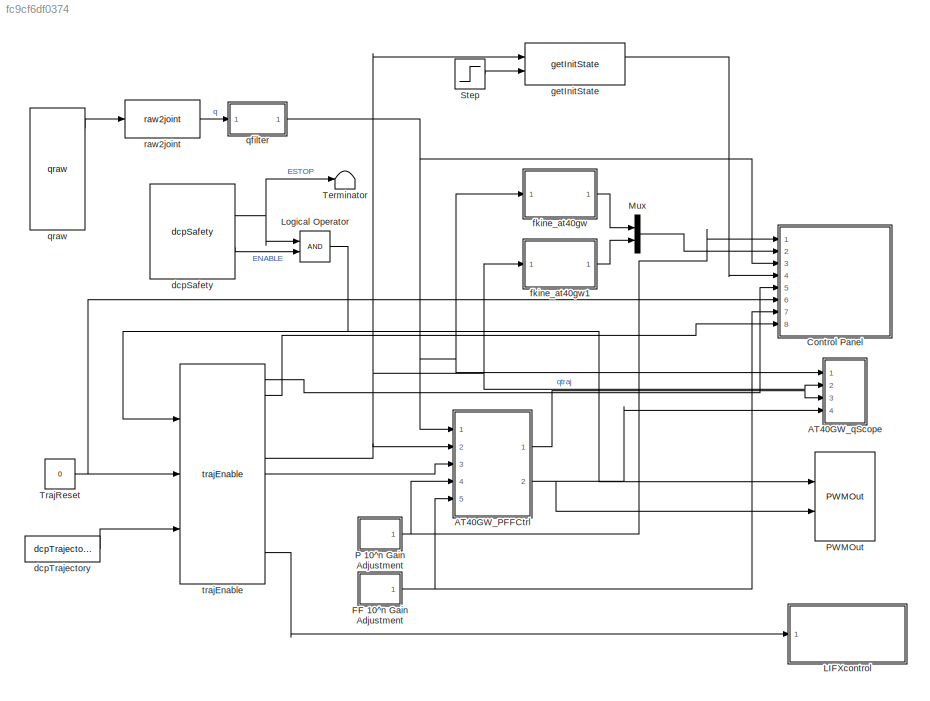
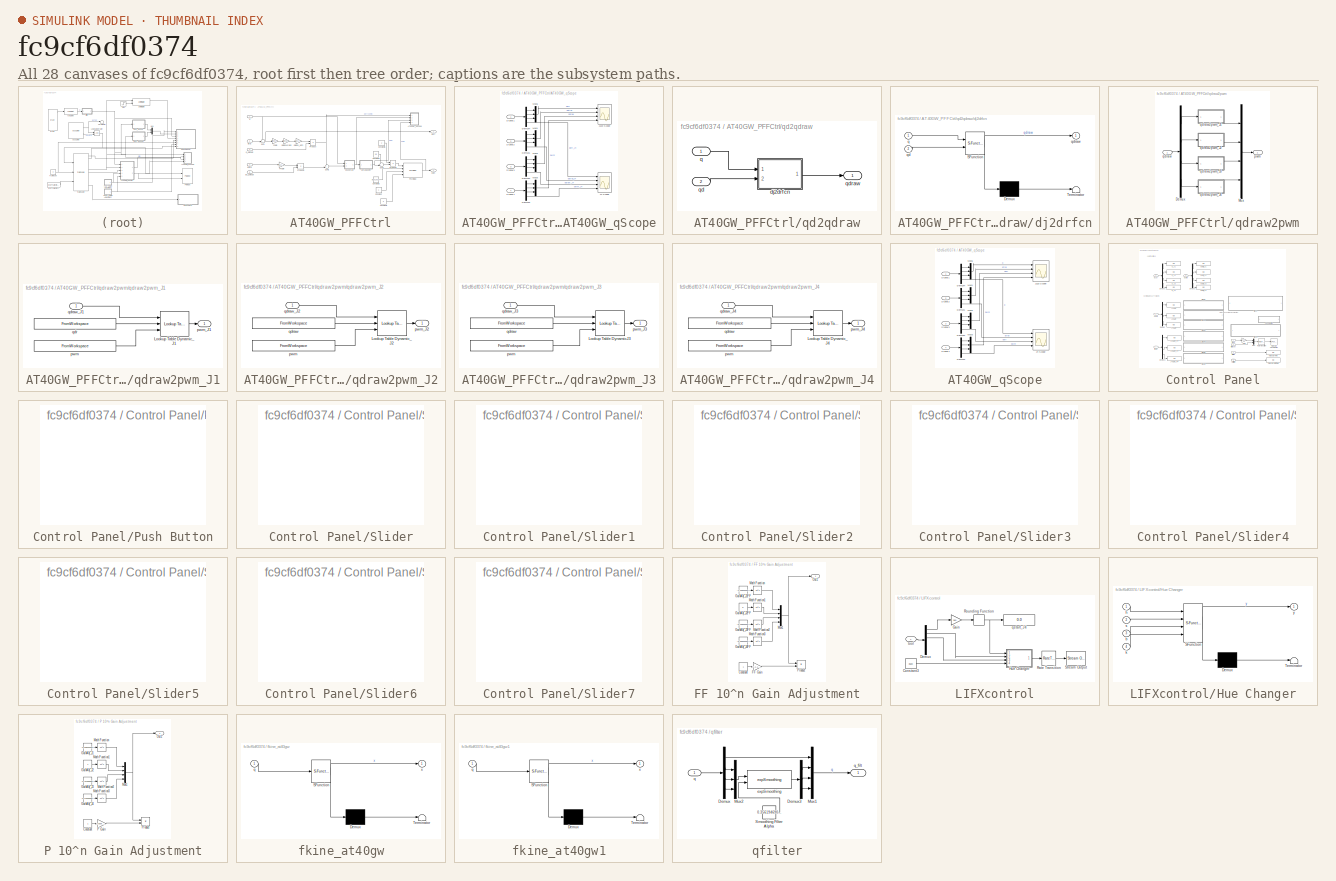
[diagram: thumbnail index - all 28 canvases of the model, root first then tree order]
MODEL slx_fc9cf6df0374
KIND model
CONFIG AbsTol = auto
CONFIG EnableMultiTasking = on
CONFIG FixedStep = 0.001
CONFIG MaxStep = auto
CONFIG MinStep = auto
CONFIG RelTol = 1e-3
CONFIG SampleTimeConstraint = Unconstrained
CONFIG Solver = ode5
CONFIG SolverName = ode5
CONFIG StartTime = 0.0
CONFIG StopTime = inf
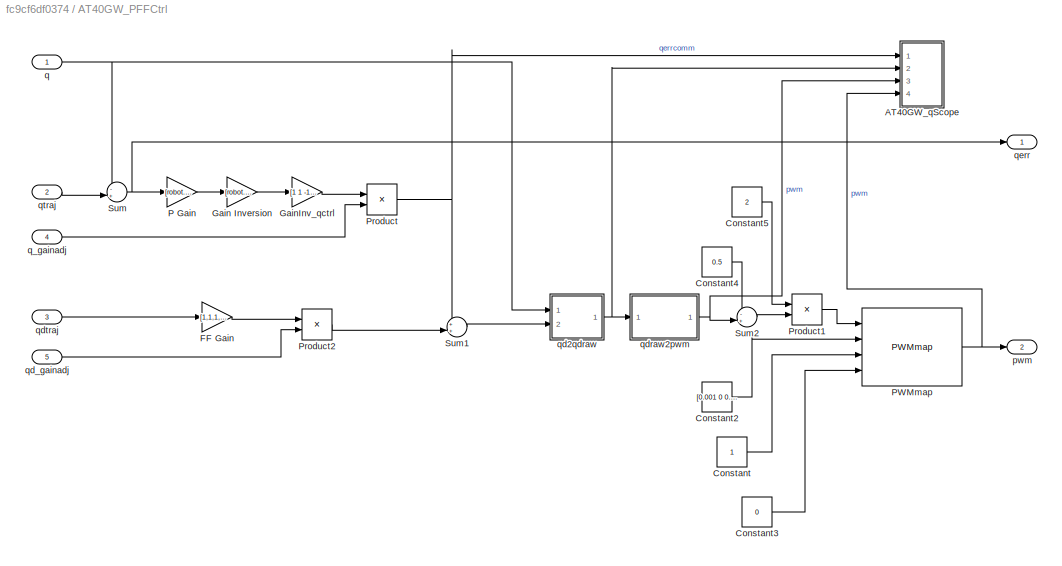
BLOCK [SubSystem] AT40GW_PFFCtrl
  Ports = [5, 2]
  RequestExecContextInheritance = off
  Variant = off
BLOCK [SubSystem] AT40GW_PFFCtrl/AT40GW_qScope
  Ports = [4]
  RequestExecContextInheritance = off
  Variant = off
BLOCK [Demux] AT40GW_PFFCtrl/AT40GW_qScope/Demux1
  DisplayOption = bar
  Ports = [1, 4]
BLOCK [Demux] AT40GW_PFFCtrl/AT40GW_qScope/Demux2
  DisplayOption = bar
  Ports = [1, 4]
BLOCK [Demux] AT40GW_PFFCtrl/AT40GW_qScope/Demux3
  DisplayOption = bar
  Ports = [1, 4]
BLOCK [Demux] AT40GW_PFFCtrl/AT40GW_qScope/Demux4
  DisplayOption = bar
  Ports = [1, 4]
BLOCK [Scope] AT40GW_PFFCtrl/AT40GW_qScope/J123 Scope
  NumInputPorts = 4
  Ports = [4]
  ScopeSpecificationString = C++SS(StrPVP('SaveName','ScopeData1'))
BLOCK [Scope] AT40GW_PFFCtrl/AT40GW_qScope/J4 Scope
  NumInputPorts = 4
  Ports = [4]
  ScopeSpecificationString = C++SS(StrPVP('SaveName','ScopeData1'),StrPVP('SaveName','ScopeData2'))
BLOCK [Mux] AT40GW_PFFCtrl/AT40GW_qScope/Mux1
  DisplayOption = bar
  Inputs = 3
  Ports = [3, 1]
BLOCK [Mux] AT40GW_PFFCtrl/AT40GW_qScope/Mux2
  DisplayOption = bar
  Inputs = 3
  Ports = [3, 1]
BLOCK [Mux] AT40GW_PFFCtrl/AT40GW_qScope/Mux3
  DisplayOption = bar
  Inputs = 3
  Ports = [3, 1]
BLOCK [Mux] AT40GW_PFFCtrl/AT40GW_qScope/Mux6
  DisplayOption = bar
  Inputs = 3
  Ports = [3, 1]
BLOCK [Inport] AT40GW_PFFCtrl/AT40GW_qScope/Signal1
  IconDisplay = Port number
BLOCK [Inport] AT40GW_PFFCtrl/AT40GW_qScope/Signal2
  IconDisplay = Port number
  Port = 2
BLOCK [Inport] AT40GW_PFFCtrl/AT40GW_qScope/Signal3
  IconDisplay = Port number
  Port = 3
BLOCK [Inport] AT40GW_PFFCtrl/AT40GW_qScope/Signal4
  IconDisplay = Port number
  Port = 4
BLOCK [Constant] AT40GW_PFFCtrl/Constant
BLOCK [Constant] AT40GW_PFFCtrl/Constant2
  Value = [0.001 0 0.001 0.001]
BLOCK [Constant] AT40GW_PFFCtrl/Constant3
  Value = 0
BLOCK [Constant] AT40GW_PFFCtrl/Constant4
  Value = 0.5
BLOCK [Constant] AT40GW_PFFCtrl/Constant5
  Value = 2
BLOCK [Gain] AT40GW_PFFCtrl/FF Gain
  Gain = [1,1,1,1]
  OutDataTypeStr = Inherit: Inherit via internal rule
  ParamDataTypeStr = Inherit: Inherit via internal rule
  SaturateOnIntegerOverflow = off
BLOCK [Gain] AT40GW_PFFCtrl/Gain Inversion
  Gain = [robot.Joint(:).GainInv]
  OutDataTypeStr = Inherit: Inherit via internal rule
  ParamDataTypeStr = Inherit: Inherit via internal rule
  SaturateOnIntegerOverflow = off
BLOCK [Gain] AT40GW_PFFCtrl/GainInv_qctrl
  Gain = [1 1 -1 -1]
  OutDataTypeStr = Inherit: Inherit via internal rule
  ParamDataTypeStr = Inherit: Inherit via internal rule
  SaturateOnIntegerOverflow = off
BLOCK [Gain] AT40GW_PFFCtrl/P Gain
  Gain = [robot.Joint(:).Kp]
  OutDataTypeStr = Inherit: Inherit via internal rule
  ParamDataTypeStr = Inherit: Inherit via internal rule
  SaturateOnIntegerOverflow = off
BLOCK [Reference] AT40GW_PFFCtrl/PWMmap  REF=dcpctrl/PWMmap
  Ports = [4, 1]
  SourceBlock = dcpctrl/PWMmap
  SourceType = PWMmap
BLOCK [Product] AT40GW_PFFCtrl/Product
  InputSameDT = off
  OutDataTypeStr = Inherit: Inherit via internal rule
  Ports = [2, 1]
  RndMeth = Floor
  SaturateOnIntegerOverflow = off
BLOCK [Product] AT40GW_PFFCtrl/Product1
  InputSameDT = off
  OutDataTypeStr = Inherit: Inherit via internal rule
  Ports = [2, 1]
  RndMeth = Floor
  SaturateOnIntegerOverflow = off
BLOCK [Product] AT40GW_PFFCtrl/Product2
  InputSameDT = off
  OutDataTypeStr = Inherit: Inherit via internal rule
  Ports = [2, 1]
  RndMeth = Floor
  SaturateOnIntegerOverflow = off
BLOCK [Sum] AT40GW_PFFCtrl/Sum
  IconShape = round
  InputSameDT = off
  Inputs = -+|
  OutDataTypeStr = Inherit: Inherit via internal rule
  Ports = [2, 1]
  SaturateOnIntegerOverflow = off
BLOCK [Sum] AT40GW_PFFCtrl/Sum1
  IconShape = round
  InputSameDT = off
  Inputs = ++|
  OutDataTypeStr = Inherit: Inherit via internal rule
  Ports = [2, 1]
  SaturateOnIntegerOverflow = off
BLOCK [Sum] AT40GW_PFFCtrl/Sum2
  IconShape = round
  InputSameDT = off
  Inputs = -+|
  OutDataTypeStr = Inherit: Inherit via internal rule
  Ports = [2, 1]
  SaturateOnIntegerOverflow = off
BLOCK [Outport] AT40GW_PFFCtrl/pwm
  IconDisplay = Port number
  Port = 2
BLOCK [Inport] AT40GW_PFFCtrl/q
  IconDisplay = Port number
BLOCK [Inport] AT40GW_PFFCtrl/q_gainadj 
  IconDisplay = Port number
  Port = 4
BLOCK [SubSystem] AT40GW_PFFCtrl/qd2qdraw
  Ports = [2, 1]
  RequestExecContextInheritance = off
  Variant = off
BLOCK [SubSystem] AT40GW_PFFCtrl/qd2qdraw/dj2drfcn
  ErrorFcn = Stateflow.Translate.translate
  PermitHierarchicalResolution = ExplicitOnly
  Ports = [2, 1]
  RequestExecContextInheritance = off
  SFBlockType = MATLAB Function
  TreatAsAtomicUnit = on
  Variant = off
BLOCK [Demux] AT40GW_PFFCtrl/qd2qdraw/dj2drfcn/ Demux 
  Outputs = 1
  Ports = [1, 1]
BLOCK [S-Function] AT40GW_PFFCtrl/qd2qdraw/dj2drfcn/ SFunction 
  EnableBusSupport = off
  FunctionName = sf_sfun
  PortCounts = [2 2]
  Ports = [2, 2]
  SFcnIsStateOwnerBlock = off
  SFunctionDeploymentMode = off
  Tag = Stateflow S-Function at40_pffCtrl_q 3
BLOCK [Terminator] AT40GW_PFFCtrl/qd2qdraw/dj2drfcn/ Terminator 
BLOCK [Inport] AT40GW_PFFCtrl/qd2qdraw/dj2drfcn/q
  IconDisplay = Port number
BLOCK [Inport] AT40GW_PFFCtrl/qd2qdraw/dj2drfcn/qd
  IconDisplay = Port number
  Port = 2
BLOCK [Outport] AT40GW_PFFCtrl/qd2qdraw/dj2drfcn/qdraw
  IconDisplay = Port number
BLOCK [Inport] AT40GW_PFFCtrl/qd2qdraw/q
  IconDisplay = Port number
BLOCK [Inport] AT40GW_PFFCtrl/qd2qdraw/qd
  IconDisplay = Port number
  Port = 2
BLOCK [Outport] AT40GW_PFFCtrl/qd2qdraw/qdraw
  IconDisplay = Port number
BLOCK [Inport] AT40GW_PFFCtrl/qd_gainadj
  IconDisplay = Port number
  Port = 5
BLOCK [SubSystem] AT40GW_PFFCtrl/qdraw2pwm
  Ports = [1, 1]
  RequestExecContextInheritance = off
  Variant = off
BLOCK [Demux] AT40GW_PFFCtrl/qdraw2pwm/Demux
  DisplayOption = bar
  Ports = [1, 4]
BLOCK [Mux] AT40GW_PFFCtrl/qdraw2pwm/Mux
  DisplayOption = bar
  Ports = [4, 1]
BLOCK [Outport] AT40GW_PFFCtrl/qdraw2pwm/pwm
  IconDisplay = Port number
BLOCK [Inport] AT40GW_PFFCtrl/qdraw2pwm/qdraw
  IconDisplay = Port number
BLOCK [SubSystem] AT40GW_PFFCtrl/qdraw2pwm/qdraw2pwm_J1
  Ports = [1, 1]
  RequestExecContextInheritance = off
  Variant = off
BLOCK [Reference] AT40GW_PFFCtrl/qdraw2pwm/qdraw2pwm_J1/Lookup Table Dynamic_J1  REF=simulink/Lookup
Tables/Lookup
Table
Dynamic
  Ports = [3, 1]
  SourceBlock = simulink/Lookup\nTables/Lookup\nTable\nDynamic
  SourceType = Lookup Table Dynamic
BLOCK [FromWorkspace] AT40GW_PFFCtrl/qdraw2pwm/qdraw2pwm_J1/pwm
  SampleTime = 0
  VariableName = robot.J1qdr2PWMmap(:,1)'
  ZeroCross = on
BLOCK [Outport] AT40GW_PFFCtrl/qdraw2pwm/qdraw2pwm_J1/pwm_J1
  IconDisplay = Port number
BLOCK [FromWorkspace] AT40GW_PFFCtrl/qdraw2pwm/qdraw2pwm_J1/qdr
  SampleTime = 0
  VariableName = robot.J1qdr2PWMmap(:,2)'
  ZeroCross = on
BLOCK [Inport] AT40GW_PFFCtrl/qdraw2pwm/qdraw2pwm_J1/qdraw_J1
  IconDisplay = Port number
BLOCK [SubSystem] AT40GW_PFFCtrl/qdraw2pwm/qdraw2pwm_J2
  Ports = [1, 1]
  RequestExecContextInheritance = off
  Variant = off
BLOCK [Reference] AT40GW_PFFCtrl/qdraw2pwm/qdraw2pwm_J2/Lookup Table Dynamic_J2  REF=simulink/Lookup
Tables/Lookup
Table
Dynamic
  Ports = [3, 1]
  SourceBlock = simulink/Lookup\nTables/Lookup\nTable\nDynamic
  SourceType = Lookup Table Dynamic
BLOCK [FromWorkspace] AT40GW_PFFCtrl/qdraw2pwm/qdraw2pwm_J2/pwm
  SampleTime = 0
  VariableName = robot.J2qdr2PWMmap(:,1)'
  ZeroCross = on
BLOCK [Outport] AT40GW_PFFCtrl/qdraw2pwm/qdraw2pwm_J2/pwm_J2
  IconDisplay = Port number
BLOCK [FromWorkspace] AT40GW_PFFCtrl/qdraw2pwm/qdraw2pwm_J2/qdraw
  SampleTime = 0
  VariableName = robot.J2qdr2PWMmap(:,2)'
  ZeroCross = on
BLOCK [Inport] AT40GW_PFFCtrl/qdraw2pwm/qdraw2pwm_J2/qdraw_J2
  IconDisplay = Port number
BLOCK [SubSystem] AT40GW_PFFCtrl/qdraw2pwm/qdraw2pwm_J3
  Ports = [1, 1]
  RequestExecContextInheritance = off
  Variant = off
BLOCK [Reference] AT40GW_PFFCtrl/qdraw2pwm/qdraw2pwm_J3/Lookup Table DynamicJ3  REF=simulink/Lookup
Tables/Lookup
Table
Dynamic
  Ports = [3, 1]
  SourceBlock = simulink/Lookup\nTables/Lookup\nTable\nDynamic
  SourceType = Lookup Table Dynamic
BLOCK [FromWorkspace] AT40GW_PFFCtrl/qdraw2pwm/qdraw2pwm_J3/pwm
  SampleTime = 0
  VariableName = robot.J3qdr2PWMmap(:,1)'
  ZeroCross = on
BLOCK [Outport] AT40GW_PFFCtrl/qdraw2pwm/qdraw2pwm_J3/pwm_J3
  IconDisplay = Port number
BLOCK [FromWorkspace] AT40GW_PFFCtrl/qdraw2pwm/qdraw2pwm_J3/qdraw
  SampleTime = 0
  VariableName = robot.J3qdr2PWMmap(:,2)'
  ZeroCross = on
BLOCK [Inport] AT40GW_PFFCtrl/qdraw2pwm/qdraw2pwm_J3/qdraw_J3
  IconDisplay = Port number
BLOCK [SubSystem] AT40GW_PFFCtrl/qdraw2pwm/qdraw2pwm_J4
  Ports = [1, 1]
  RequestExecContextInheritance = off
  Variant = off
BLOCK [Reference] AT40GW_PFFCtrl/qdraw2pwm/qdraw2pwm_J4/Lookup Table Dynamic_J4  REF=simulink/Lookup
Tables/Lookup
Table
Dynamic
  Ports = [3, 1]
  SourceBlock = simulink/Lookup\nTables/Lookup\nTable\nDynamic
  SourceType = Lookup Table Dynamic
BLOCK [FromWorkspace] AT40GW_PFFCtrl/qdraw2pwm/qdraw2pwm_J4/pwm
  SampleTime = 0
  VariableName = robot.J4qdr2PWMmap(:,1)'
  ZeroCross = on
BLOCK [Outport] AT40GW_PFFCtrl/qdraw2pwm/qdraw2pwm_J4/pwm_J4
  IconDisplay = Port number
BLOCK [FromWorkspace] AT40GW_PFFCtrl/qdraw2pwm/qdraw2pwm_J4/qdraw
  SampleTime = 0
  VariableName = robot.J4qdr2PWMmap(:,2)'
  ZeroCross = on
BLOCK [Inport] AT40GW_PFFCtrl/qdraw2pwm/qdraw2pwm_J4/qdraw_J4
  IconDisplay = Port number
BLOCK [Inport] AT40GW_PFFCtrl/qdtraj
  IconDisplay = Port number
  Port = 3
BLOCK [Outport] AT40GW_PFFCtrl/qerr
  IconDisplay = Port number
BLOCK [Inport] AT40GW_PFFCtrl/qtraj
  IconDisplay = Port number
  Port = 2
BLOCK [SubSystem] AT40GW_qScope
  Ports = [4]
  RequestExecContextInheritance = off
  Variant = off
BLOCK [Demux] AT40GW_qScope/Demux1
  DisplayOption = bar
  Ports = [1, 4]
BLOCK [Demux] AT40GW_qScope/Demux2
  DisplayOption = bar
  Ports = [1, 4]
BLOCK [Demux] AT40GW_qScope/Demux3
  DisplayOption = bar
  Ports = [1, 4]
BLOCK [Demux] AT40GW_qScope/Demux4
  DisplayOption = bar
  Ports = [1, 4]
BLOCK [Scope] AT40GW_qScope/J123 Scope
  NumInputPorts = 4
  Ports = [4]
  ScopeSpecificationString = Simulink.scopes.TimeScopeBlockCfg('CurrentConfiguration', extmgr.ConfigurationSet(extmgr.Configuration('Core','General UI',true),extmgr.Configuration('Core','Source UI',true),extmgr.Configuration('Sources','WiredSimulink',true),extmgr.Configuration('Visuals','Time Domain',true,'SerializedDisplays',{struct('MinYLimReal','-12.79285','MaxYLimReal','19.63757','YLabelReal','','MinYLimMag','0.00000','Ma...<+3438ch>
BLOCK [Scope] AT40GW_qScope/J4 Scope
  NumInputPorts = 4
  Ports = [4]
  ScopeSpecificationString = Simulink.scopes.TimeScopeBlockCfg('CurrentConfiguration', extmgr.ConfigurationSet(extmgr.Configuration('Core','General UI',true),extmgr.Configuration('Core','Source UI',true),extmgr.Configuration('Sources','WiredSimulink',true,'DataLoggingVariableName','ScopeData1'),extmgr.Configuration('Visuals','Time Domain',true,'SerializedDisplays',{struct('MinYLimReal','-24.06531','MaxYLimReal','720.47221','Y...<+3410ch>
BLOCK [Mux] AT40GW_qScope/Mux1
  DisplayOption = bar
  Inputs = 3
  Ports = [3, 1]
BLOCK [Mux] AT40GW_qScope/Mux2
  DisplayOption = bar
  Inputs = 3
  Ports = [3, 1]
BLOCK [Mux] AT40GW_qScope/Mux3
  DisplayOption = bar
  Inputs = 3
  Ports = [3, 1]
BLOCK [Mux] AT40GW_qScope/Mux6
  DisplayOption = bar
  Inputs = 3
  Ports = [3, 1]
BLOCK [Inport] AT40GW_qScope/Signal1
  IconDisplay = Port number
BLOCK [Inport] AT40GW_qScope/Signal2
  IconDisplay = Port number
  Port = 2
BLOCK [Inport] AT40GW_qScope/Signal3
  IconDisplay = Port number
  Port = 3
BLOCK [Inport] AT40GW_qScope/Signal4
  IconDisplay = Port number
  Port = 4
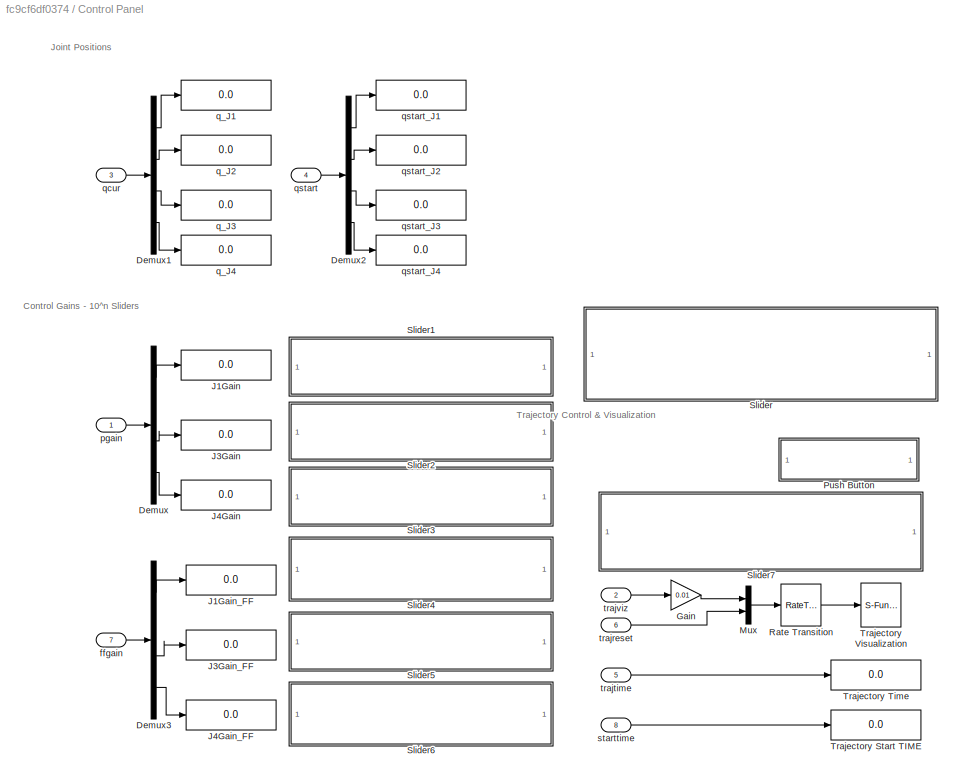
BLOCK [SubSystem] Control Panel
  Ports = [8]
  RequestExecContextInheritance = off
  Variant = off
BLOCK [Demux] Control Panel/Demux
  DisplayOption = bar
  Ports = [1, 4]
BLOCK [Demux] Control Panel/Demux1
  DisplayOption = bar
  Ports = [1, 4]
BLOCK [Demux] Control Panel/Demux2
  DisplayOption = bar
  Ports = [1, 4]
BLOCK [Demux] Control Panel/Demux3
  DisplayOption = bar
  Ports = [1, 4]
BLOCK [Gain] Control Panel/Gain
  Gain = 0.01
  OutDataTypeStr = Inherit: Inherit via internal rule
  ParamDataTypeStr = Inherit: Inherit via internal rule
  SaturateOnIntegerOverflow = off
BLOCK [Display] Control Panel/J1Gain
  Decimation = 1
  Ports = [1]
BLOCK [Display] Control Panel/J1Gain_FF
  Decimation = 1
  Ports = [1]
BLOCK [Display] Control Panel/J3Gain
  Decimation = 1
  Ports = [1]
BLOCK [Display] Control Panel/J3Gain_FF
  Decimation = 1
  Ports = [1]
BLOCK [Display] Control Panel/J4Gain
  Decimation = 1
  Ports = [1]
BLOCK [Display] Control Panel/J4Gain_FF
  Decimation = 1
  Ports = [1]
BLOCK [Mux] Control Panel/Mux
  DisplayOption = bar
  Inputs = 2
  Ports = [2, 1]
BLOCK [SubSystem] Control Panel/Push Button
  DialogController = hmiCreateDDGDialog
  IsWebBlock = on
  Ports = []
  RequestExecContextInheritance = off
  Variant = off
BLOCK [RateTransition] Control Panel/Rate Transition
BLOCK [SubSystem] Control Panel/Slider
  DialogController = hmiCreateDDGDialog
  IsWebBlock = on
  MaskHideContents = on
  Ports = []
  RequestExecContextInheritance = off
  Variant = off
BLOCK [SubSystem] Control Panel/Slider1
  DialogController = hmiCreateDDGDialog
  IsWebBlock = on
  MaskHideContents = on
  Ports = []
  RequestExecContextInheritance = off
  Variant = off
BLOCK [SubSystem] Control Panel/Slider2
  DialogController = hmiCreateDDGDialog
  IsWebBlock = on
  MaskHideContents = on
  Ports = []
  RequestExecContextInheritance = off
  Variant = off
BLOCK [SubSystem] Control Panel/Slider3
  DialogController = hmiCreateDDGDialog
  IsWebBlock = on
  MaskHideContents = on
  Ports = []
  RequestExecContextInheritance = off
  Variant = off
BLOCK [SubSystem] Control Panel/Slider4
  DialogController = hmiCreateDDGDialog
  IsWebBlock = on
  MaskHideContents = on
  Ports = []
  RequestExecContextInheritance = off
  Variant = off
BLOCK [SubSystem] Control Panel/Slider5
  DialogController = hmiCreateDDGDialog
  IsWebBlock = on
  MaskHideContents = on
  Ports = []
  RequestExecContextInheritance = off
  Variant = off
BLOCK [SubSystem] Control Panel/Slider6
  DialogController = hmiCreateDDGDialog
  IsWebBlock = on
  MaskHideContents = on
  Ports = []
  RequestExecContextInheritance = off
  Variant = off
BLOCK [SubSystem] Control Panel/Slider7
  DialogController = hmiCreateDDGDialog
  IsWebBlock = on
  MaskHideContents = on
  Ports = []
  RequestExecContextInheritance = off
  Variant = off
BLOCK [Display] Control Panel/Trajectory Start TIME
  Decimation = 1
  Ports = [1]
BLOCK [Display] Control Panel/Trajectory Time
  Decimation = 1
  Ports = [1]
BLOCK [S-Function] Control Panel/Trajectory Visualization
  CopyFcn = if exist('sfun3d','file'), sfun3d([],[],[],'CopyBlock'); end
  DeleteFcn = if exist('sfun3d','file'), sfun3d([],[],[],'DeleteBlock'); end
  EnableBusSupport = off
  FunctionName = sfun3d
  LoadFcn = if exist('sfun3d','file'), sfun3d([],[],[],'LoadBlock'); end
  NameChangeFcn = if exist('sfun3d','file'), sfun3d([],[],[],'NameChange'); end
  Parameters = ax,T,np,cp,gd,ls,mk
  Ports = [1]
  SFcnIsStateOwnerBlock = off
  SFunctionDeploymentMode = off
BLOCK [Inport] Control Panel/ffgain
  IconDisplay = Port number
  Port = 7
BLOCK [Inport] Control Panel/pgain
  IconDisplay = Port number
BLOCK [Display] Control Panel/q_J1
  Decimation = 1
  Ports = [1]
BLOCK [Display] Control Panel/q_J2
  Decimation = 1
  Ports = [1]
BLOCK [Display] Control Panel/q_J3
  Decimation = 1
  Ports = [1]
BLOCK [Display] Control Panel/q_J4
  Decimation = 1
  Ports = [1]
BLOCK [Inport] Control Panel/qcur
  IconDisplay = Port number
  Port = 3
BLOCK [Inport] Control Panel/qstart
  IconDisplay = Port number
  Port = 4
BLOCK [Display] Control Panel/qstart_J1
  Decimation = 1
  Ports = [1]
BLOCK [Display] Control Panel/qstart_J2
  Decimation = 1
  Ports = [1]
BLOCK [Display] Control Panel/qstart_J3
  Decimation = 1
  Ports = [1]
BLOCK [Display] Control Panel/qstart_J4
  Decimation = 1
  Ports = [1]
BLOCK [Inport] Control Panel/starttime
  IconDisplay = Port number
  Port = 8
BLOCK [Inport] Control Panel/trajreset
  IconDisplay = Port number
  Port = 6
BLOCK [Inport] Control Panel/trajtime
  IconDisplay = Port number
  Port = 5
BLOCK [Inport] Control Panel/trajviz
  IconDisplay = Port number
  Port = 2
BLOCK [SubSystem] FF 10^n Gain Adjustment
  Ports = [0, 1]
  RequestExecContextInheritance = off
  Variant = off
BLOCK [Constant] FF 10^n Gain Adjustment/Constant
BLOCK [Gain] FF 10^n Gain Adjustment/FF Gain
  Gain = [1,1,1,1]
  OutDataTypeStr = Inherit: Inherit via internal rule
  ParamDataTypeStr = Inherit: Inherit via internal rule
  SaturateOnIntegerOverflow = off
BLOCK [Constant] FF 10^n Gain Adjustment/GainAdj_J1FF
  Value = -1.108333333333333
BLOCK [Constant] FF 10^n Gain Adjustment/GainAdj_J2FF
  Value = 0
BLOCK [Constant] FF 10^n Gain Adjustment/GainAdj_J3FF
  Value = -0.7083333333333333
BLOCK [Constant] FF 10^n Gain Adjustment/GainAdj_J4FF
  Value = -0.4583333333333335
BLOCK [Math] FF 10^n Gain Adjustment/Math Function
  Operator = 10^u
  Ports = [1, 1]
BLOCK [Math] FF 10^n Gain Adjustment/Math Function1
  Operator = 10^u
  Ports = [1, 1]
BLOCK [Math] FF 10^n Gain Adjustment/Math Function2
  Operator = 10^u
  Ports = [1, 1]
BLOCK [Math] FF 10^n Gain Adjustment/Math Function3
  Operator = 10^u
  Ports = [1, 1]
BLOCK [Mux] FF 10^n Gain Adjustment/Mux1
  DisplayOption = bar
  Ports = [4, 1]
BLOCK [Outport] FF 10^n Gain Adjustment/Out1
  IconDisplay = Port number
BLOCK [Product] FF 10^n Gain Adjustment/Product
  InputSameDT = off
  OutDataTypeStr = Inherit: Inherit via internal rule
  Ports = [2, 1]
  RndMeth = Floor
  SaturateOnIntegerOverflow = off
BLOCK [SubSystem] LIFXcontrol
  Ports = [1]
  RequestExecContextInheritance = off
  Variant = off
BLOCK [Constant] LIFXcontrol/Constant3
  OutDataTypeStr = double
  OutMax = [9000]
  OutMin = [2500]
  Value = 3500
BLOCK [Demux] LIFXcontrol/Demux
  DisplayOption = bar
  Outputs = 6
  Ports = [1, 6]
BLOCK [Gain] LIFXcontrol/Gain
  Gain = 360
  OutDataTypeStr = Inherit: Inherit via internal rule
  ParamDataTypeStr = Inherit: Inherit via internal rule
  SaturateOnIntegerOverflow = off
BLOCK [SubSystem] LIFXcontrol/Hue Changer
  ErrorFcn = Stateflow.Translate.translate
  PermitHierarchicalResolution = ExplicitOnly
  Ports = [4, 1]
  RequestExecContextInheritance = off
  SFBlockType = MATLAB Function
  TreatAsAtomicUnit = on
  Variant = off
BLOCK [Demux] LIFXcontrol/Hue Changer/ Demux 
  Outputs = 1
  Ports = [1, 1]
BLOCK [S-Function] LIFXcontrol/Hue Changer/ SFunction 
  EnableBusSupport = off
  FunctionName = sf_sfun
  PortCounts = [4 2]
  Ports = [4, 2]
  SFcnIsStateOwnerBlock = off
  SFunctionDeploymentMode = off
  Tag = Stateflow S-Function at40_pffCtrl_q 4
BLOCK [Terminator] LIFXcontrol/Hue Changer/ Terminator 
BLOCK [Inport] LIFXcontrol/Hue Changer/b
  IconDisplay = Port number
  Port = 3
BLOCK [Inport] LIFXcontrol/Hue Changer/h
  IconDisplay = Port number
BLOCK [Inport] LIFXcontrol/Hue Changer/k
  IconDisplay = Port number
  Port = 4
BLOCK [Inport] LIFXcontrol/Hue Changer/s
  IconDisplay = Port number
  Port = 2
BLOCK [Outport] LIFXcontrol/Hue Changer/y
  IconDisplay = Port number
BLOCK [RateTransition] LIFXcontrol/Rate Transition
BLOCK [Rounding] LIFXcontrol/Rounding Function
  Operator = round
BLOCK [Reference] LIFXcontrol/Stream Output  REF=sldrtlib/Stream Output
  AttributesFormatString = Standard Devices\nUDP Protocol [D457h]
  Ports = [1]
  SourceBlock = sldrtlib/Stream Output
  SourceType = Simulink Desktop Real-Time Stream Output
BLOCK [Display] LIFXcontrol/qstart_J4
  Decimation = 1
  Ports = [1]
BLOCK [Inport] LIFXcontrol/tool
  IconDisplay = Port number
BLOCK [Logic] Logical Operator
  AllPortsSameDT = off
  OutDataTypeStr = boolean
  Ports = [2, 1]
BLOCK [Mux] Mux
  DisplayOption = bar
  Inputs = 2
  Ports = [2, 1]
BLOCK [SubSystem] P 10^n Gain Adjustment
  Ports = [0, 1]
  RequestExecContextInheritance = off
  Variant = off
BLOCK [Constant] P 10^n Gain Adjustment/Constant
BLOCK [Constant] P 10^n Gain Adjustment/GainAdj_J1
  Value = -0.5083333333333333
BLOCK [Constant] P 10^n Gain Adjustment/GainAdj_J2
BLOCK [Constant] P 10^n Gain Adjustment/GainAdj_J3
  Value = -0.4249999999999998
BLOCK [Constant] P 10^n Gain Adjustment/GainAdj_J4
  Value = -0.2750000000000001
BLOCK [Math] P 10^n Gain Adjustment/Math Function
  Operator = 10^u
  Ports = [1, 1]
BLOCK [Math] P 10^n Gain Adjustment/Math Function1
  Operator = 10^u
  Ports = [1, 1]
BLOCK [Math] P 10^n Gain Adjustment/Math Function2
  Operator = 10^u
  Ports = [1, 1]
BLOCK [Math] P 10^n Gain Adjustment/Math Function3
  Operator = 10^u
  Ports = [1, 1]
BLOCK [Mux] P 10^n Gain Adjustment/Mux1
  DisplayOption = bar
  Ports = [4, 1]
BLOCK [Outport] P 10^n Gain Adjustment/Out1
  IconDisplay = Port number
BLOCK [Gain] P 10^n Gain Adjustment/P Gain
  Gain = [robot.Joint(:).Kp]
  OutDataTypeStr = Inherit: Inherit via internal rule
  ParamDataTypeStr = Inherit: Inherit via internal rule
  SaturateOnIntegerOverflow = off
BLOCK [Product] P 10^n Gain Adjustment/Product
  InputSameDT = off
  OutDataTypeStr = Inherit: Inherit via internal rule
  Ports = [2, 1]
  RndMeth = Floor
  SaturateOnIntegerOverflow = off
BLOCK [Reference] PWMOut  REF=dcpctrl/PWMOut
  Ports = [2]
  SourceBlock = dcpctrl/PWMOut
  SourceType = SubSystem
BLOCK [Step] Step
  SampleTime = 0
  Time = 0
BLOCK [Terminator] Terminator
BLOCK [Constant] TrajReset
  Value = 0
BLOCK [Reference] dcpSafety  REF=dcpctrl/dcpSafety
  Ports = [0, 2]
  SourceBlock = dcpctrl/dcpSafety
  SourceType = SubSystem
BLOCK [Reference] dcpTrajectory  REF=dcpctrl/dcpTrajectory
  Ports = [0, 1]
  SourceBlock = dcpctrl/dcpTrajectory
  SourceType = SubSystem
BLOCK [SubSystem] fkine_at40gw
  ErrorFcn = Stateflow.Translate.translate
  PermitHierarchicalResolution = ExplicitOnly
  Ports = [1, 1]
  RequestExecContextInheritance = off
  SFBlockType = MATLAB Function
  TreatAsAtomicUnit = on
  Variant = off
BLOCK [Demux] fkine_at40gw/ Demux 
  Outputs = 1
  Ports = [1, 1]
BLOCK [S-Function] fkine_at40gw/ SFunction 
  EnableBusSupport = off
  FunctionName = sf_sfun
  PortCounts = [1 2]
  Ports = [1, 2]
  SFcnIsStateOwnerBlock = off
  SFunctionDeploymentMode = off
  Tag = Stateflow S-Function at40_pffCtrl_q 2
BLOCK [Terminator] fkine_at40gw/ Terminator 
BLOCK [Inport] fkine_at40gw/q
  IconDisplay = Port number
BLOCK [Outport] fkine_at40gw/x
  IconDisplay = Port number
BLOCK [SubSystem] fkine_at40gw1
  ErrorFcn = Stateflow.Translate.translate
  PermitHierarchicalResolution = ExplicitOnly
  Ports = [1, 1]
  RequestExecContextInheritance = off
  SFBlockType = MATLAB Function
  TreatAsAtomicUnit = on
  Variant = off
BLOCK [Demux] fkine_at40gw1/ Demux 
  Outputs = 1
  Ports = [1, 1]
BLOCK [S-Function] fkine_at40gw1/ SFunction 
  EnableBusSupport = off
  FunctionName = sf_sfun
  PortCounts = [1 2]
  Ports = [1, 2]
  SFcnIsStateOwnerBlock = off
  SFunctionDeploymentMode = off
  Tag = Stateflow S-Function at40_pffCtrl_q 1
BLOCK [Terminator] fkine_at40gw1/ Terminator 
BLOCK [Inport] fkine_at40gw1/q
  IconDisplay = Port number
BLOCK [Outport] fkine_at40gw1/x
  IconDisplay = Port number
BLOCK [Reference] getInitState  REF=dcpctrl/getInitState
  Ports = [2, 2]
  SourceBlock = dcpctrl/getInitState
  SourceType = SubSystem
BLOCK [SubSystem] qfilter
  Ports = [1, 1]
  RequestExecContextInheritance = off
  Variant = off
BLOCK [Demux] qfilter/Demux
  DisplayOption = bar
  Ports = [1, 4]
BLOCK [Demux] qfilter/Demux3
  DisplayOption = bar
  Outputs = 3
  Ports = [1, 3]
BLOCK [Mux] qfilter/Mux1
  DisplayOption = bar
  Ports = [4, 1]
BLOCK [Mux] qfilter/Mux2
  DisplayOption = bar
  Inputs = 3
  Ports = [3, 1]
BLOCK [Constant] qfilter/Smoothing Filter Alpha
  Value = 0.3561946902654867
BLOCK [Reference] qfilter/expSmoothing  REF=dcpctrl/expSmoothing
  Ports = [2, 1]
  SourceBlock = dcpctrl/expSmoothing
  SourceType = SubSystem
BLOCK [Inport] qfilter/q
  IconDisplay = Port number
BLOCK [Outport] qfilter/q_filt
  IconDisplay = Port number
BLOCK [Reference] qraw  REF=dcpctrl/qraw
  Ports = [0, 5]
  SourceBlock = dcpctrl/qraw
  SourceType = SubSystem
BLOCK [Reference] raw2joint  REF=dcpctrl/raw2joint
  Ports = [1, 1]
  SourceBlock = dcpctrl/raw2joint
  SourceType = SubSystem
BLOCK [Reference] trajEnable  REF=dcpctrl/trajEnable
  Ports = [3, 13]
  SourceBlock = dcpctrl/trajEnable
  SourceType = SubSystem
ANNOTATION Control Panel: Control Gains - 10^n Sliders
ANNOTATION Control Panel: Joint Positions
ANNOTATION Control Panel: Trajectory Control & Visualization
LINE AT40GW_PFFCtrl/AT40GW_qScope/Demux1:1 -> AT40GW_PFFCtrl/AT40GW_qScope/Mux1:1
LINE AT40GW_PFFCtrl/AT40GW_qScope/Demux1:2 -> AT40GW_PFFCtrl/AT40GW_qScope/Mux1:2
LINE AT40GW_PFFCtrl/AT40GW_qScope/Demux1:3 -> AT40GW_PFFCtrl/AT40GW_qScope/Mux1:3
LINE AT40GW_PFFCtrl/AT40GW_qScope/Demux1:4 -> AT40GW_PFFCtrl/AT40GW_qScope/J4 Scope:2
LINE AT40GW_PFFCtrl/AT40GW_qScope/Demux2:1 -> AT40GW_PFFCtrl/AT40GW_qScope/Mux2:1
LINE AT40GW_PFFCtrl/AT40GW_qScope/Demux2:2 -> AT40GW_PFFCtrl/AT40GW_qScope/Mux2:2
LINE AT40GW_PFFCtrl/AT40GW_qScope/Demux2:3 -> AT40GW_PFFCtrl/AT40GW_qScope/Mux2:3
LINE AT40GW_PFFCtrl/AT40GW_qScope/Demux2:4 -> AT40GW_PFFCtrl/AT40GW_qScope/J4 Scope:3
LINE AT40GW_PFFCtrl/AT40GW_qScope/Demux3:1 -> AT40GW_PFFCtrl/AT40GW_qScope/Mux3:1
LINE AT40GW_PFFCtrl/AT40GW_qScope/Demux3:2 -> AT40GW_PFFCtrl/AT40GW_qScope/Mux3:2
LINE AT40GW_PFFCtrl/AT40GW_qScope/Demux3:3 -> AT40GW_PFFCtrl/AT40GW_qScope/Mux3:3
LINE AT40GW_PFFCtrl/AT40GW_qScope/Demux3:4 -> AT40GW_PFFCtrl/AT40GW_qScope/J4 Scope:4
LINE AT40GW_PFFCtrl/AT40GW_qScope/Demux4:1 -> AT40GW_PFFCtrl/AT40GW_qScope/Mux6:1
LINE AT40GW_PFFCtrl/AT40GW_qScope/Demux4:2 -> AT40GW_PFFCtrl/AT40GW_qScope/Mux6:2
LINE AT40GW_PFFCtrl/AT40GW_qScope/Demux4:3 -> AT40GW_PFFCtrl/AT40GW_qScope/Mux6:3
LINE AT40GW_PFFCtrl/AT40GW_qScope/Demux4:4 -> AT40GW_PFFCtrl/AT40GW_qScope/J4 Scope:1
LINE AT40GW_PFFCtrl/AT40GW_qScope/Mux1:1 -> AT40GW_PFFCtrl/AT40GW_qScope/J123 Scope:2
LINE AT40GW_PFFCtrl/AT40GW_qScope/Mux2:1 -> AT40GW_PFFCtrl/AT40GW_qScope/J123 Scope:3
LINE AT40GW_PFFCtrl/AT40GW_qScope/Mux3:1 -> AT40GW_PFFCtrl/AT40GW_qScope/J123 Scope:4
LINE AT40GW_PFFCtrl/AT40GW_qScope/Mux6:1 -> AT40GW_PFFCtrl/AT40GW_qScope/J123 Scope:1
LINE AT40GW_PFFCtrl/AT40GW_qScope/Signal1:1 -> AT40GW_PFFCtrl/AT40GW_qScope/Demux4:1
LINE AT40GW_PFFCtrl/AT40GW_qScope/Signal2:1 -> AT40GW_PFFCtrl/AT40GW_qScope/Demux1:1
LINE AT40GW_PFFCtrl/AT40GW_qScope/Signal3:1 -> AT40GW_PFFCtrl/AT40GW_qScope/Demux2:1
LINE AT40GW_PFFCtrl/AT40GW_qScope/Signal4:1 -> AT40GW_PFFCtrl/AT40GW_qScope/Demux3:1
LINE AT40GW_PFFCtrl/Constant2:1 -> AT40GW_PFFCtrl/PWMmap:2
LINE AT40GW_PFFCtrl/Constant3:1 -> AT40GW_PFFCtrl/PWMmap:4
LINE AT40GW_PFFCtrl/Constant4:1 -> AT40GW_PFFCtrl/Sum2:1
LINE AT40GW_PFFCtrl/Constant5:1 -> AT40GW_PFFCtrl/Product1:1
LINE AT40GW_PFFCtrl/Constant:1 -> AT40GW_PFFCtrl/PWMmap:3
LINE AT40GW_PFFCtrl/FF Gain:1 -> AT40GW_PFFCtrl/Product2:1
LINE AT40GW_PFFCtrl/Gain Inversion:1 -> AT40GW_PFFCtrl/GainInv_qctrl:1
LINE AT40GW_PFFCtrl/GainInv_qctrl:1 -> AT40GW_PFFCtrl/Product:1
LINE AT40GW_PFFCtrl/P Gain:1 -> AT40GW_PFFCtrl/Gain Inversion:1
NET AT40GW_PFFCtrl/PWMmap:1 -> AT40GW_PFFCtrl/AT40GW_qScope:4, AT40GW_PFFCtrl/pwm:1
LINE AT40GW_PFFCtrl/Product1:1 -> AT40GW_PFFCtrl/PWMmap:1
LINE AT40GW_PFFCtrl/Product2:1 -> AT40GW_PFFCtrl/Sum1:2
NET AT40GW_PFFCtrl/Product:1 -> AT40GW_PFFCtrl/AT40GW_qScope:1, AT40GW_PFFCtrl/Sum1:1
LINE AT40GW_PFFCtrl/Sum1:1 -> AT40GW_PFFCtrl/qd2qdraw:2
LINE AT40GW_PFFCtrl/Sum2:1 -> AT40GW_PFFCtrl/Product1:2
NET AT40GW_PFFCtrl/Sum:1 -> AT40GW_PFFCtrl/P Gain:1, AT40GW_PFFCtrl/qerr:1
NET AT40GW_PFFCtrl/q:1 -> AT40GW_PFFCtrl/Sum:1, AT40GW_PFFCtrl/qd2qdraw:1
LINE AT40GW_PFFCtrl/q_gainadj :1 -> AT40GW_PFFCtrl/Product:2
LINE AT40GW_PFFCtrl/qd2qdraw/dj2drfcn:1 -> AT40GW_PFFCtrl/qd2qdraw/qdraw:1
LINE AT40GW_PFFCtrl/qd2qdraw/q:1 -> AT40GW_PFFCtrl/qd2qdraw/dj2drfcn:1
LINE AT40GW_PFFCtrl/qd2qdraw/qd:1 -> AT40GW_PFFCtrl/qd2qdraw/dj2drfcn:2
NET AT40GW_PFFCtrl/qd2qdraw:1 -> AT40GW_PFFCtrl/AT40GW_qScope:2, AT40GW_PFFCtrl/qdraw2pwm:1
LINE AT40GW_PFFCtrl/qd_gainadj:1 -> AT40GW_PFFCtrl/Product2:2
LINE AT40GW_PFFCtrl/qdraw2pwm/Demux:1 -> AT40GW_PFFCtrl/qdraw2pwm/qdraw2pwm_J1:1
LINE AT40GW_PFFCtrl/qdraw2pwm/Demux:2 -> AT40GW_PFFCtrl/qdraw2pwm/qdraw2pwm_J2:1
LINE AT40GW_PFFCtrl/qdraw2pwm/Demux:3 -> AT40GW_PFFCtrl/qdraw2pwm/qdraw2pwm_J3:1
LINE AT40GW_PFFCtrl/qdraw2pwm/Demux:4 -> AT40GW_PFFCtrl/qdraw2pwm/qdraw2pwm_J4:1
LINE AT40GW_PFFCtrl/qdraw2pwm/Mux:1 -> AT40GW_PFFCtrl/qdraw2pwm/pwm:1
LINE AT40GW_PFFCtrl/qdraw2pwm/qdraw2pwm_J1/Lookup Table Dynamic_J1:1 -> AT40GW_PFFCtrl/qdraw2pwm/qdraw2pwm_J1/pwm_J1:1
LINE AT40GW_PFFCtrl/qdraw2pwm/qdraw2pwm_J1/pwm:1 -> AT40GW_PFFCtrl/qdraw2pwm/qdraw2pwm_J1/Lookup Table Dynamic_J1:3
LINE AT40GW_PFFCtrl/qdraw2pwm/qdraw2pwm_J1/qdr:1 -> AT40GW_PFFCtrl/qdraw2pwm/qdraw2pwm_J1/Lookup Table Dynamic_J1:2
LINE AT40GW_PFFCtrl/qdraw2pwm/qdraw2pwm_J1/qdraw_J1:1 -> AT40GW_PFFCtrl/qdraw2pwm/qdraw2pwm_J1/Lookup Table Dynamic_J1:1
LINE AT40GW_PFFCtrl/qdraw2pwm/qdraw2pwm_J1:1 -> AT40GW_PFFCtrl/qdraw2pwm/Mux:1
LINE AT40GW_PFFCtrl/qdraw2pwm/qdraw2pwm_J2/Lookup Table Dynamic_J2:1 -> AT40GW_PFFCtrl/qdraw2pwm/qdraw2pwm_J2/pwm_J2:1
LINE AT40GW_PFFCtrl/qdraw2pwm/qdraw2pwm_J2/pwm:1 -> AT40GW_PFFCtrl/qdraw2pwm/qdraw2pwm_J2/Lookup Table Dynamic_J2:3
LINE AT40GW_PFFCtrl/qdraw2pwm/qdraw2pwm_J2/qdraw:1 -> AT40GW_PFFCtrl/qdraw2pwm/qdraw2pwm_J2/Lookup Table Dynamic_J2:2
LINE AT40GW_PFFCtrl/qdraw2pwm/qdraw2pwm_J2/qdraw_J2:1 -> AT40GW_PFFCtrl/qdraw2pwm/qdraw2pwm_J2/Lookup Table Dynamic_J2:1
LINE AT40GW_PFFCtrl/qdraw2pwm/qdraw2pwm_J2:1 -> AT40GW_PFFCtrl/qdraw2pwm/Mux:2
LINE AT40GW_PFFCtrl/qdraw2pwm/qdraw2pwm_J3/Lookup Table DynamicJ3:1 -> AT40GW_PFFCtrl/qdraw2pwm/qdraw2pwm_J3/pwm_J3:1
LINE AT40GW_PFFCtrl/qdraw2pwm/qdraw2pwm_J3/pwm:1 -> AT40GW_PFFCtrl/qdraw2pwm/qdraw2pwm_J3/Lookup Table DynamicJ3:3
LINE AT40GW_PFFCtrl/qdraw2pwm/qdraw2pwm_J3/qdraw:1 -> AT40GW_PFFCtrl/qdraw2pwm/qdraw2pwm_J3/Lookup Table DynamicJ3:2
LINE AT40GW_PFFCtrl/qdraw2pwm/qdraw2pwm_J3/qdraw_J3:1 -> AT40GW_PFFCtrl/qdraw2pwm/qdraw2pwm_J3/Lookup Table DynamicJ3:1
LINE AT40GW_PFFCtrl/qdraw2pwm/qdraw2pwm_J3:1 -> AT40GW_PFFCtrl/qdraw2pwm/Mux:3
LINE AT40GW_PFFCtrl/qdraw2pwm/qdraw2pwm_J4/Lookup Table Dynamic_J4:1 -> AT40GW_PFFCtrl/qdraw2pwm/qdraw2pwm_J4/pwm_J4:1
LINE AT40GW_PFFCtrl/qdraw2pwm/qdraw2pwm_J4/pwm:1 -> AT40GW_PFFCtrl/qdraw2pwm/qdraw2pwm_J4/Lookup Table Dynamic_J4:3
LINE AT40GW_PFFCtrl/qdraw2pwm/qdraw2pwm_J4/qdraw:1 -> AT40GW_PFFCtrl/qdraw2pwm/qdraw2pwm_J4/Lookup Table Dynamic_J4:2
LINE AT40GW_PFFCtrl/qdraw2pwm/qdraw2pwm_J4/qdraw_J4:1 -> AT40GW_PFFCtrl/qdraw2pwm/qdraw2pwm_J4/Lookup Table Dynamic_J4:1
LINE AT40GW_PFFCtrl/qdraw2pwm/qdraw2pwm_J4:1 -> AT40GW_PFFCtrl/qdraw2pwm/Mux:4
LINE AT40GW_PFFCtrl/qdraw2pwm/qdraw:1 -> AT40GW_PFFCtrl/qdraw2pwm/Demux:1
NET AT40GW_PFFCtrl/qdraw2pwm:1 -> AT40GW_PFFCtrl/AT40GW_qScope:3, AT40GW_PFFCtrl/Sum2:2
LINE AT40GW_PFFCtrl/qdtraj:1 -> AT40GW_PFFCtrl/FF Gain:1
LINE AT40GW_PFFCtrl/qtraj:1 -> AT40GW_PFFCtrl/Sum:2
LINE AT40GW_PFFCtrl:1 -> AT40GW_qScope:3
NET AT40GW_PFFCtrl:2 -> AT40GW_qScope:4, PWMOut:2
LINE AT40GW_qScope/Demux1:1 -> AT40GW_qScope/Mux1:1
LINE AT40GW_qScope/Demux1:2 -> AT40GW_qScope/Mux1:2
LINE AT40GW_qScope/Demux1:3 -> AT40GW_qScope/Mux1:3
LINE AT40GW_qScope/Demux1:4 -> AT40GW_qScope/J4 Scope:2
LINE AT40GW_qScope/Demux2:1 -> AT40GW_qScope/Mux2:1
LINE AT40GW_qScope/Demux2:2 -> AT40GW_qScope/Mux2:2
LINE AT40GW_qScope/Demux2:3 -> AT40GW_qScope/Mux2:3
LINE AT40GW_qScope/Demux2:4 -> AT40GW_qScope/J4 Scope:3
LINE AT40GW_qScope/Demux3:1 -> AT40GW_qScope/Mux3:1
LINE AT40GW_qScope/Demux3:2 -> AT40GW_qScope/Mux3:2
LINE AT40GW_qScope/Demux3:3 -> AT40GW_qScope/Mux3:3
LINE AT40GW_qScope/Demux3:4 -> AT40GW_qScope/J4 Scope:4
LINE AT40GW_qScope/Demux4:1 -> AT40GW_qScope/Mux6:1
LINE AT40GW_qScope/Demux4:2 -> AT40GW_qScope/Mux6:2
LINE AT40GW_qScope/Demux4:3 -> AT40GW_qScope/Mux6:3
LINE AT40GW_qScope/Demux4:4 -> AT40GW_qScope/J4 Scope:1
LINE AT40GW_qScope/Mux1:1 -> AT40GW_qScope/J123 Scope:2
LINE AT40GW_qScope/Mux2:1 -> AT40GW_qScope/J123 Scope:3
LINE AT40GW_qScope/Mux3:1 -> AT40GW_qScope/J123 Scope:4
LINE AT40GW_qScope/Mux6:1 -> AT40GW_qScope/J123 Scope:1
LINE AT40GW_qScope/Signal1:1 -> AT40GW_qScope/Demux4:1
LINE AT40GW_qScope/Signal2:1 -> AT40GW_qScope/Demux1:1
LINE AT40GW_qScope/Signal3:1 -> AT40GW_qScope/Demux2:1
LINE AT40GW_qScope/Signal4:1 -> AT40GW_qScope/Demux3:1
LINE Control Panel/Demux1:1 -> Control Panel/q_J1:1
LINE Control Panel/Demux1:2 -> Control Panel/q_J2:1
LINE Control Panel/Demux1:3 -> Control Panel/q_J3:1
LINE Control Panel/Demux1:4 -> Control Panel/q_J4:1
LINE Control Panel/Demux2:1 -> Control Panel/qstart_J1:1
LINE Control Panel/Demux2:2 -> Control Panel/qstart_J2:1
LINE Control Panel/Demux2:3 -> Control Panel/qstart_J3:1
LINE Control Panel/Demux2:4 -> Control Panel/qstart_J4:1
LINE Control Panel/Demux3:1 -> Control Panel/J1Gain_FF:1
LINE Control Panel/Demux3:3 -> Control Panel/J3Gain_FF:1
LINE Control Panel/Demux3:4 -> Control Panel/J4Gain_FF:1
LINE Control Panel/Demux:1 -> Control Panel/J1Gain:1
LINE Control Panel/Demux:3 -> Control Panel/J3Gain:1
LINE Control Panel/Demux:4 -> Control Panel/J4Gain:1
LINE Control Panel/Gain:1 -> Control Panel/Mux:1
LINE Control Panel/Mux:1 -> Control Panel/Rate Transition:1
LINE Control Panel/Rate Transition:1 -> Control Panel/Trajectory Visualization:1
LINE Control Panel/ffgain:1 -> Control Panel/Demux3:1
LINE Control Panel/pgain:1 -> Control Panel/Demux:1
LINE Control Panel/qcur:1 -> Control Panel/Demux1:1
LINE Control Panel/qstart:1 -> Control Panel/Demux2:1
LINE Control Panel/starttime:1 -> Control Panel/Trajectory Start TIME:1
LINE Control Panel/trajreset:1 -> Control Panel/Mux:2
LINE Control Panel/trajtime:1 -> Control Panel/Trajectory Time:1
LINE Control Panel/trajviz:1 -> Control Panel/Gain:1
LINE FF 10^n Gain Adjustment/Constant:1 -> FF 10^n Gain Adjustment/FF Gain:1
LINE FF 10^n Gain Adjustment/FF Gain:1 -> FF 10^n Gain Adjustment/Product:2
LINE FF 10^n Gain Adjustment/GainAdj_J1FF:1 -> FF 10^n Gain Adjustment/Math Function:1
LINE FF 10^n Gain Adjustment/GainAdj_J2FF:1 -> FF 10^n Gain Adjustment/Math Function1:1
LINE FF 10^n Gain Adjustment/GainAdj_J3FF:1 -> FF 10^n Gain Adjustment/Math Function2:1
LINE FF 10^n Gain Adjustment/GainAdj_J4FF:1 -> FF 10^n Gain Adjustment/Math Function3:1
LINE FF 10^n Gain Adjustment/Math Function1:1 -> FF 10^n Gain Adjustment/Mux1:2
LINE FF 10^n Gain Adjustment/Math Function2:1 -> FF 10^n Gain Adjustment/Mux1:3
LINE FF 10^n Gain Adjustment/Math Function3:1 -> FF 10^n Gain Adjustment/Mux1:4
LINE FF 10^n Gain Adjustment/Math Function:1 -> FF 10^n Gain Adjustment/Mux1:1
NET FF 10^n Gain Adjustment/Mux1:1 -> FF 10^n Gain Adjustment/Out1:1, FF 10^n Gain Adjustment/Product:1
NET FF 10^n Gain Adjustment:1 -> AT40GW_PFFCtrl:5, Control Panel:7
LINE LIFXcontrol/Constant3:1 -> LIFXcontrol/Hue Changer:4
LINE LIFXcontrol/Demux:1 -> LIFXcontrol/Gain:1
LINE LIFXcontrol/Demux:2 -> LIFXcontrol/Hue Changer:2
LINE LIFXcontrol/Demux:3 -> LIFXcontrol/Hue Changer:3
LINE LIFXcontrol/Gain:1 -> LIFXcontrol/Rounding Function:1
LINE LIFXcontrol/Hue Changer:1 -> LIFXcontrol/Rate Transition:1
LINE LIFXcontrol/Rate Transition:1 -> LIFXcontrol/Stream Output:1
NET LIFXcontrol/Rounding Function:1 -> LIFXcontrol/Hue Changer:1, LIFXcontrol/qstart_J4:1
LINE LIFXcontrol/tool:1 -> LIFXcontrol/Demux:1
NET Logical Operator:1 -> PWMOut:1, trajEnable:1
LINE Mux:1 -> Control Panel:2
LINE P 10^n Gain Adjustment/Constant:1 -> P 10^n Gain Adjustment/P Gain:1
LINE P 10^n Gain Adjustment/GainAdj_J1:1 -> P 10^n Gain Adjustment/Math Function:1
LINE P 10^n Gain Adjustment/GainAdj_J2:1 -> P 10^n Gain Adjustment/Math Function1:1
LINE P 10^n Gain Adjustment/GainAdj_J3:1 -> P 10^n Gain Adjustment/Math Function2:1
LINE P 10^n Gain Adjustment/GainAdj_J4:1 -> P 10^n Gain Adjustment/Math Function3:1
LINE P 10^n Gain Adjustment/Math Function1:1 -> P 10^n Gain Adjustment/Mux1:2
LINE P 10^n Gain Adjustment/Math Function2:1 -> P 10^n Gain Adjustment/Mux1:3
LINE P 10^n Gain Adjustment/Math Function3:1 -> P 10^n Gain Adjustment/Mux1:4
LINE P 10^n Gain Adjustment/Math Function:1 -> P 10^n Gain Adjustment/Mux1:1
NET P 10^n Gain Adjustment/Mux1:1 -> P 10^n Gain Adjustment/Out1:1, P 10^n Gain Adjustment/Product:1
LINE P 10^n Gain Adjustment/P Gain:1 -> P 10^n Gain Adjustment/Product:2
NET P 10^n Gain Adjustment:1 -> AT40GW_PFFCtrl:4, Control Panel:1
LINE Step:1 -> getInitState:2
NET TrajReset:1 -> Control Panel:6, trajEnable:2
NET dcpSafety:1 -> Logical Operator:1, Terminator:1
LINE dcpSafety:2 -> Logical Operator:2
LINE dcpTrajectory:1 -> trajEnable:3
LINE fkine_at40gw1:1 -> Mux:2
LINE fkine_at40gw:1 -> Mux:1
LINE getInitState:1 -> Control Panel:4
LINE qfilter/Demux3:1 -> qfilter/Mux1:2
LINE qfilter/Demux3:2 -> qfilter/Mux1:3
LINE qfilter/Demux3:3 -> qfilter/Mux1:4
LINE qfilter/Demux:1 -> qfilter/Mux1:1
LINE qfilter/Demux:2 -> qfilter/Mux2:1
LINE qfilter/Demux:3 -> qfilter/Mux2:2
LINE qfilter/Demux:4 -> qfilter/Mux2:3
LINE qfilter/Mux1:1 -> qfilter/q_filt:1
LINE qfilter/Mux2:1 -> qfilter/expSmoothing:1
LINE qfilter/Smoothing Filter Alpha:1 -> qfilter/expSmoothing:2
LINE qfilter/expSmoothing:1 -> qfilter/Demux3:1
LINE qfilter/q:1 -> qfilter/Demux:1
NET qfilter:1 -> AT40GW_PFFCtrl:1, AT40GW_qScope:1, Control Panel:3, fkine_at40gw:1
LINE qraw:1 -> raw2joint:1
LINE raw2joint:1 -> qfilter:1
LINE trajEnable:1 -> Control Panel:5
LINE trajEnable:12 -> LIFXcontrol:1
LINE trajEnable:2 -> Control Panel:8
NET trajEnable:6 -> AT40GW_PFFCtrl:2, AT40GW_qScope:2, fkine_at40gw1:1, getInitState:1
LINE trajEnable:7 -> AT40GW_PFFCtrl:3
note: NET lines group one-source signal fan-out (src -> all destinations, sorted); 1:1 wires keep LINE
CHART fkine_at40gw1 states=1 transitions=1
  STATE_LABEL 'eML_blk_kernel()'
  STATE_LABEL 'SCRIPT:\nfunction x = fcn(q)\n%#codegen\n\nx_temp = fkine_at40gw(q(1),q(2),q(3),q(4))*[1;0;0;0];\nx = x_temp(2:4);'
CHART fkine_at40gw states=1 transitions=1
  STATE_LABEL 'eML_blk_kernel()'
  STATE_LABEL 'SCRIPT:\nfunction x = fcn(q)\n%#codegen\n\nx_temp = fkine_at40gw(q(1),q(2),q(3),q(4))*[1;0;0;0];\nx = x_temp(2:4);'
CHART AT40GW_PFFCtrl/qd2qdraw/dj2drfcn states=1 transitions=1
  STATE_LABEL 'eML_blk_kernel()'
  STATE_LABEL 'SCRIPT:\nfunction qdraw = fcn(q,qd)\n%#codegen\n\nqdraw = dj2drfcn_at40gw(q(2),q(3))*qd;'
CHART LIFXcontrol/Hue Changer states=1 transitions=1
  STATE_LABEL 'eML_blk_kernel()'
  STATE_LABEL "SCRIPT:\nfunction y = fcn(h,s,b,k)\n%#codegen\n%%\ndec_code = [49;0;0;52;0;0;0;0;0;0;0;0;0;0;0;0;0;0;0;0;0;0;0;0;0;0;0;0;0;0;0;0;102;0;0;0;0;85;85;255;255;255;255;191;218;0;0;0;0];\n%%\n%%HUE \nhue = h/360 * 65535; %hue conversion formula, from degrees scale to LIFX scale\nhue = floor(hue);\nhue_hex = dec2hex(hue);\n\nif (length(hue_hex) == 1)\n    hue_arr = ['0',hue_hex(1)];\n    hue_arr = ['00',hue_arr(1:2)]...<+2435ch>"
